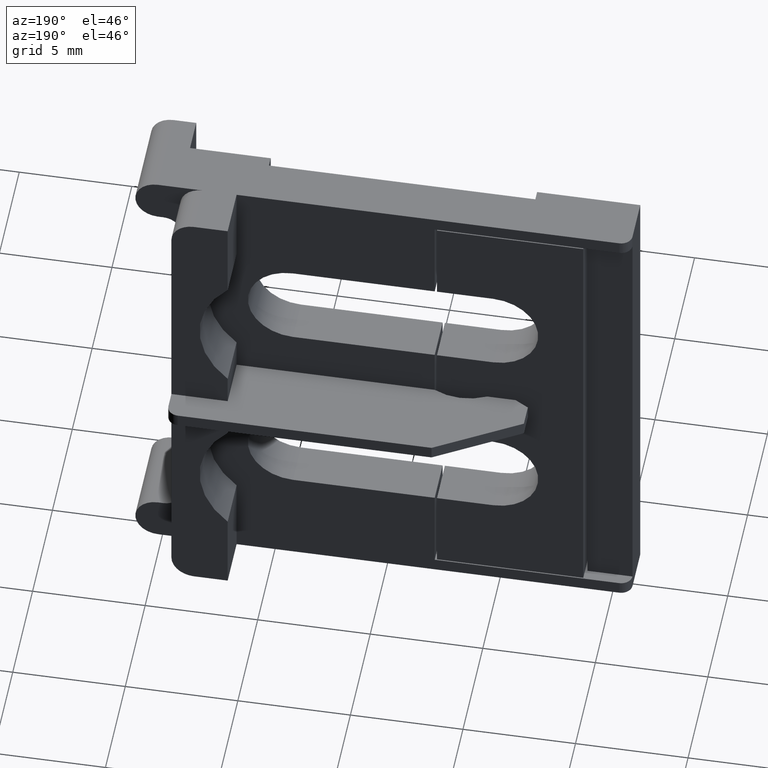
[diagram: clean part render]
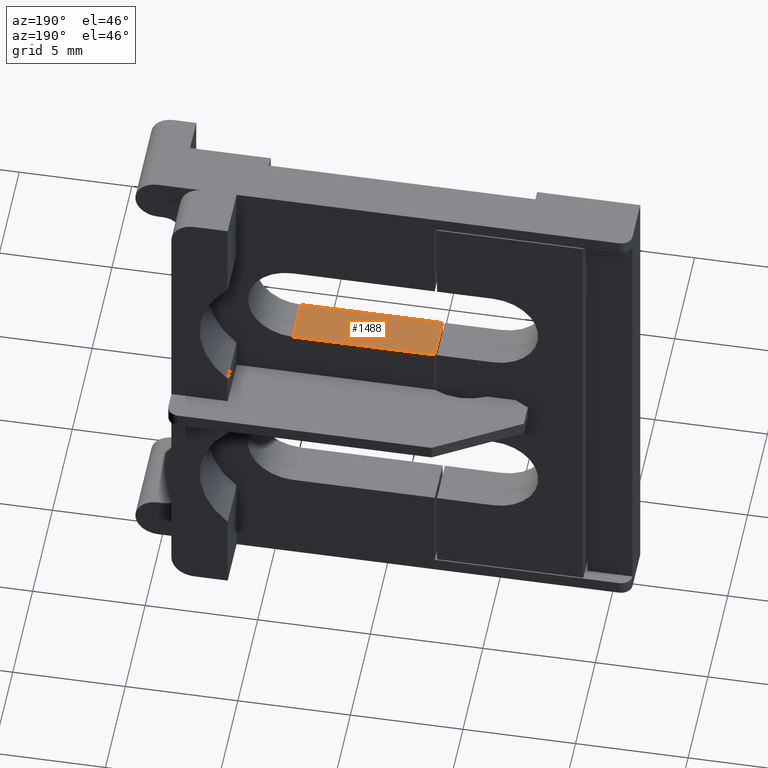
[diagram: same view with one face highlighted and labeled with its STEP entity id]
A machine part, auxiliary view. The second image highlights one B-rep face of the part: STEP entity #1488.
In plain terms, the highlighted planar face has unit normal (0, -0, -1).
Its self-contained STEP definition (entity closure, byte-faithful):
#76 = AXIS2_PLACEMENT_3D ( 'NONE', #2131, #2146, #2115 ) ;
#100 = VECTOR ( 'NONE', #2191, 1000.000000000000000 ) ;
#159 = VECTOR ( 'NONE', #2279, 1000.000000000000000 ) ;
#162 = VECTOR ( 'NONE', #2341, 1000.000000000000000 ) ;
#230 = VECTOR ( 'NONE', #2369, 1000.000000000000000 ) ;
#593 = EDGE_LOOP ( 'NONE', ( #1131, #1200, #1247, #1225 ) ) ;
#707 = VERTEX_POINT ( 'NONE', #860 ) ;
#724 = VERTEX_POINT ( 'NONE', #851 ) ;
#799 = VERTEX_POINT ( 'NONE', #952 ) ;
#806 = VERTEX_POINT ( 'NONE', #1001 ) ;
#851 = CARTESIAN_POINT ( 'NONE',  ( 459.1252094327940100, 146.0878730676890000, 14.10000000000016500 ) ) ;
#860 = CARTESIAN_POINT ( 'NONE',  ( 452.8252094327941700, 144.0878730676890000, 14.10000000000017900 ) ) ;
#952 = CARTESIAN_POINT ( 'NONE',  ( 452.8252094327941100, 146.0878730676890000, 14.10000000000015400 ) ) ;
#1001 = CARTESIAN_POINT ( 'NONE',  ( 459.1252094327940100, 144.0878730676890000, 14.10000000000018300 ) ) ;
#1131 = ORIENTED_EDGE ( 'NONE', *, *, #1506, .F. ) ;
#1200 = ORIENTED_EDGE ( 'NONE', *, *, #1551, .T. ) ;
#1225 = ORIENTED_EDGE ( 'NONE', *, *, #1532, .F. ) ;
#1247 = ORIENTED_EDGE ( 'NONE', *, *, #1565, .F. ) ;
#1488 = ADVANCED_FACE ( 'NONE', ( #2117 ), #2119, .F. ) ;
#1506 = EDGE_CURVE ( 'NONE', #806, #707, #2190, .T. ) ;
#1532 = EDGE_CURVE ( 'NONE', #707, #799, #2264, .T. ) ;
#1551 = EDGE_CURVE ( 'NONE', #806, #724, #2336, .T. ) ;
#1565 = EDGE_CURVE ( 'NONE', #799, #724, #2366, .T. ) ;
#2115 = DIRECTION ( 'NONE',  ( -1.000000000000000000, 0.0000000000000000000, -3.492165866658340700E-015 ) ) ;
#2117 = FACE_OUTER_BOUND ( 'NONE', #593, .T. ) ;
#2119 = PLANE ( 'NONE',  #76 ) ;
#2131 = CARTESIAN_POINT ( 'NONE',  ( 450.1252094327940700, 136.9878730676890100, 14.10000000000012200 ) ) ;
#2146 = DIRECTION ( 'NONE',  ( 3.492165866658340700E-015, -2.733577826868160200E-020, -1.000000000000000000 ) ) ;
#2190 = LINE ( 'NONE', #2204, #100 ) ;
#2191 = DIRECTION ( 'NONE',  ( -1.000000000000000000, -2.530253133731424900E-033, 6.916643862731900400E-053 ) ) ;
#2204 = CARTESIAN_POINT ( 'NONE',  ( 479.5850360910421800, 144.0878730676890000, 14.10000000000018600 ) ) ;
#2264 = LINE ( 'NONE', #2296, #159 ) ;
#2279 = DIRECTION ( 'NONE',  ( -2.625714205539854300E-033, 1.000000000000000000, -9.169429524186070000E-048 ) ) ;
#2296 = CARTESIAN_POINT ( 'NONE',  ( 452.8252094327941700, 144.0878730676890000, 14.10000000000016800 ) ) ;
#2300 = CARTESIAN_POINT ( 'NONE',  ( 459.1252094327940100, 136.9878730676890100, 14.10000000000018300 ) ) ;
#2336 = LINE ( 'NONE', #2300, #162 ) ;
#2341 = DIRECTION ( 'NONE',  ( -2.530253133731424900E-033, 1.000000000000000000, -2.733577826868160200E-020 ) ) ;
#2366 = LINE ( 'NONE', #2384, #230 ) ;
#2369 = DIRECTION ( 'NONE',  ( 1.000000000000000000, 2.530253133731424900E-033, -6.916643862731900400E-053 ) ) ;
#2384 = CARTESIAN_POINT ( 'NONE',  ( 457.5799457489669100, 146.0878730676890000, 14.10000000000014700 ) ) ;